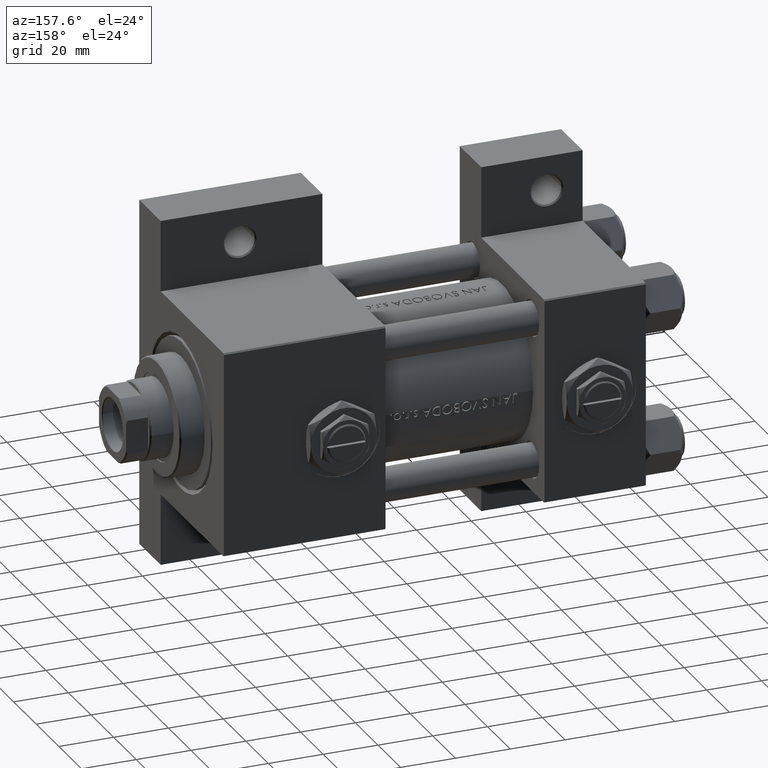
[diagram: clean part render]
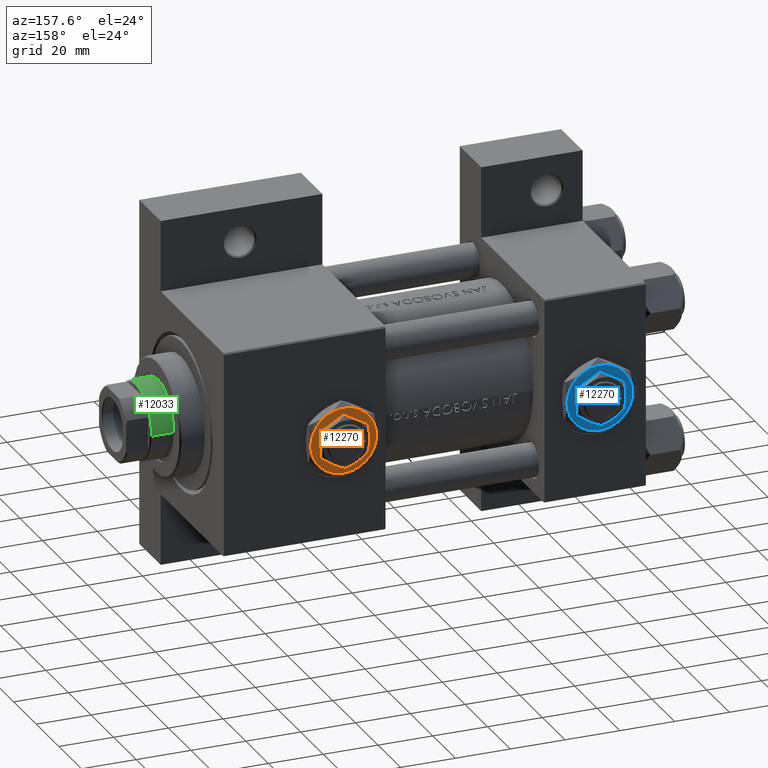
[diagram: same view with three faces highlighted in distinct colors, each labeled with its STEP entity id]
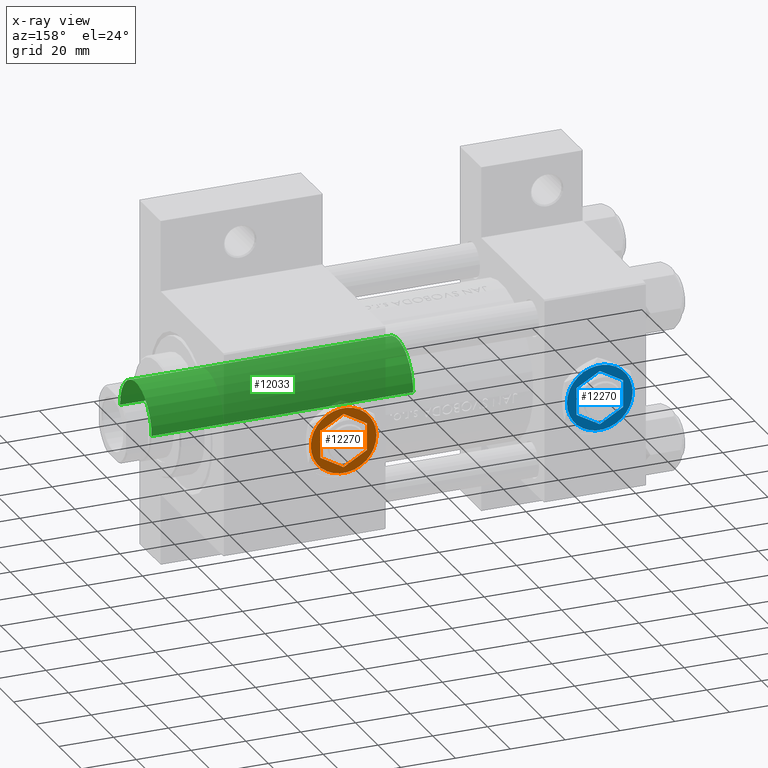
[diagram: x-ray of the same camera — body ghosted, the three highlighted faces saturated]
A machine part, auxiliary view with three faces highlighted in distinct colors.
The next image is the same camera in x-ray (body ghosted, the three faces saturated) — at least one of them is partly hidden behind the body in this view.
Their STEP definitions:

[orange] entity #12270 — the highlighted planar face has unit normal (0, 1, 0).
#495 = ORIENTED_EDGE ( 'NONE', *, *, #36572, .T. ) ;
#1752 = CARTESIAN_POINT ( 'NONE',  ( 11.99999999999999645, 3.004629197474318063E-15, 4.299999999999999822 ) ) ;
#2507 = DIRECTION ( 'NONE',  ( 0.000000000000000000, 0.000000000000000000, 1.000000000000000000 ) ) ;
#3000 = CIRCLE ( 'NONE', #45662, 12.00000000000000178 ) ;
#3204 = LINE ( 'NONE', #18585, #41126 ) ;
#3346 = EDGE_CURVE ( 'NONE', #38391, #48070, #39580, .T. ) ;
#3477 = CIRCLE ( 'NONE', #35939, 12.00000000000000178 ) ;
#3561 = LINE ( 'NONE', #10544, #24706 ) ;
#4240 = VERTEX_POINT ( 'NONE', #16581 ) ;
#4531 = CARTESIAN_POINT ( 'NONE',  ( 8.500000000000000000, -4.907477288111819824, 4.299999999999999822 ) ) ;
#4699 = ORIENTED_EDGE ( 'NONE', *, *, #5069, .F. ) ;
#4938 = VERTEX_POINT ( 'NONE', #1752 ) ;
#5069 = EDGE_CURVE ( 'NONE', #26936, #27834, #3204, .T. ) ;
#6199 = ORIENTED_EDGE ( 'NONE', *, *, #21320, .F. ) ;
#6394 = DIRECTION ( 'NONE',  ( 0.000000000000000000, 0.000000000000000000, 1.000000000000000000 ) ) ;
#7306 = EDGE_LOOP ( 'NONE', ( #27751, #25731, #6199, #30767, #4699, #8193 ) ) ;
#7328 = DIRECTION ( 'NONE',  ( 0.000000000000000000, 0.000000000000000000, 1.000000000000000000 ) ) ;
#7598 = CARTESIAN_POINT ( 'NONE',  ( 5.999999999999998224, -10.39230484541326760, 4.299999999999999822 ) ) ;
#8193 = ORIENTED_EDGE ( 'NONE', *, *, #31836, .F. ) ;
#8670 = VECTOR ( 'NONE', #19667, 1000.000000000000000 ) ;
#9870 = DIRECTION ( 'NONE',  ( 0.000000000000000000, 0.000000000000000000, 1.000000000000000000 ) ) ;
#10018 = VECTOR ( 'NONE', #21028, 1000.000000000000114 ) ;
#10544 = CARTESIAN_POINT ( 'NONE',  ( 0.000000000000000000, 9.814954576223637872, 4.299999999999999822 ) ) ;
#10646 = CIRCLE ( 'NONE', #15388, 12.00000000000000178 ) ;
#10811 = PLANE ( 'NONE',  #32242 ) ;
#12270 = ADVANCED_FACE ( 'NONE', ( #13804, #36819 ), #10811, .T. ) ;
#12516 = DIRECTION ( 'NONE',  ( 0.000000000000000000, -1.000000000000000000, 0.000000000000000000 ) ) ;
#13804 = FACE_OUTER_BOUND ( 'NONE', #19106, .T. ) ;
#13937 = DIRECTION ( 'NONE',  ( 1.000000000000000000, 0.000000000000000000, 0.000000000000000000 ) ) ;
#14046 = CARTESIAN_POINT ( 'NONE',  ( 8.500000000000000000, -4.907477288111819824, 4.299999999999999822 ) ) ;
#14323 = CARTESIAN_POINT ( 'NONE',  ( 0.000000000000000000, 0.000000000000000000, 4.299999999999999822 ) ) ;
#14330 = DIRECTION ( 'NONE',  ( 0.000000000000000000, 0.000000000000000000, 1.000000000000000000 ) ) ;
#14573 = CARTESIAN_POINT ( 'NONE',  ( -6.000000000000001776, 10.39230484541326405, 4.299999999999999822 ) ) ;
#15027 = EDGE_CURVE ( 'NONE', #48070, #4240, #3000, .T. ) ;
#15388 = AXIS2_PLACEMENT_3D ( 'NONE', #18062, #21285, #26229 ) ;
#16581 = CARTESIAN_POINT ( 'NONE',  ( -12.00000000000000178, 0.000000000000000000, 4.299999999999999822 ) ) ;
#17043 = VERTEX_POINT ( 'NONE', #14046 ) ;
#17914 = ORIENTED_EDGE ( 'NONE', *, *, #43512, .T. ) ;
#18062 = CARTESIAN_POINT ( 'NONE',  ( 0.000000000000000000, 0.000000000000000000, 4.299999999999999822 ) ) ;
#18134 = VERTEX_POINT ( 'NONE', #29269 ) ;
#18273 = DIRECTION ( 'NONE',  ( 1.000000000000000000, 0.000000000000000000, 0.000000000000000000 ) ) ;
#18585 = CARTESIAN_POINT ( 'NONE',  ( -8.500000000000000000, -4.907477288111819824, 4.299999999999999822 ) ) ;
#19106 = EDGE_LOOP ( 'NONE', ( #495, #17914, #28879, #39886, #39710, #44871 ) ) ;
#19667 = DIRECTION ( 'NONE',  ( -3.534857879381550604E-16, 1.000000000000000000, 0.000000000000000000 ) ) ;
#20784 = LINE ( 'NONE', #39856, #10018 ) ;
#21028 = DIRECTION ( 'NONE',  ( 0.8660254037844388186, 0.4999999999999997224, 0.000000000000000000 ) ) ;
#21285 = DIRECTION ( 'NONE',  ( 0.000000000000000000, 0.000000000000000000, 1.000000000000000000 ) ) ;
#21320 = EDGE_CURVE ( 'NONE', #17043, #21774, #38484, .T. ) ;
#21774 = VERTEX_POINT ( 'NONE', #38797 ) ;
#22482 = CARTESIAN_POINT ( 'NONE',  ( 0.000000000000000000, 0.000000000000000000, 4.299999999999999822 ) ) ;
#23821 = CARTESIAN_POINT ( 'NONE',  ( -6.000000000000000000, -10.39230484541326582, 4.299999999999999822 ) ) ;
#23991 = VECTOR ( 'NONE', #34222, 1000.000000000000114 ) ;
#24491 = EDGE_CURVE ( 'NONE', #37971, #25066, #34905, .T. ) ;
#24604 = DIRECTION ( 'NONE',  ( 0.000000000000000000, 0.000000000000000000, 1.000000000000000000 ) ) ;
#24706 = VECTOR ( 'NONE', #25645, 1000.000000000000227 ) ;
#25066 = VERTEX_POINT ( 'NONE', #7598 ) ;
#25645 = DIRECTION ( 'NONE',  ( -0.8660254037844385966, -0.5000000000000000000, 0.000000000000000000 ) ) ;
#25685 = CIRCLE ( 'NONE', #43091, 12.00000000000000178 ) ;
#25731 = ORIENTED_EDGE ( 'NONE', *, *, #34950, .F. ) ;
#25858 = CARTESIAN_POINT ( 'NONE',  ( -8.500000000000000000, 4.907477288111818048, 4.299999999999999822 ) ) ;
#26229 = DIRECTION ( 'NONE',  ( 1.000000000000000000, 0.000000000000000000, 0.000000000000000000 ) ) ;
#26936 = VERTEX_POINT ( 'NONE', #47702 ) ;
#27614 = CARTESIAN_POINT ( 'NONE',  ( -8.500000000000000000, 4.907477288111818048, 4.299999999999999822 ) ) ;
#27751 = ORIENTED_EDGE ( 'NONE', *, *, #30880, .F. ) ;
#27834 = VERTEX_POINT ( 'NONE', #45776 ) ;
#28879 = ORIENTED_EDGE ( 'NONE', *, *, #3346, .T. ) ;
#29269 = CARTESIAN_POINT ( 'NONE',  ( 0.000000000000000000, 9.814954576223637872, 4.299999999999999822 ) ) ;
#30261 = LINE ( 'NONE', #37923, #23991 ) ;
#30767 = ORIENTED_EDGE ( 'NONE', *, *, #48925, .F. ) ;
#30880 = EDGE_CURVE ( 'NONE', #18134, #44018, #3561, .T. ) ;
#31708 = AXIS2_PLACEMENT_3D ( 'NONE', #35023, #2507, #13937 ) ;
#31836 = EDGE_CURVE ( 'NONE', #44018, #26936, #46208, .T. ) ;
#32242 = AXIS2_PLACEMENT_3D ( 'NONE', #32874, #7328, #40549 ) ;
#32661 = DIRECTION ( 'NONE',  ( 1.000000000000000000, 0.000000000000000000, 0.000000000000000000 ) ) ;
#32874 = CARTESIAN_POINT ( 'NONE',  ( 0.000000000000000000, 0.000000000000000000, 4.299999999999999822 ) ) ;
#33213 = DIRECTION ( 'NONE',  ( 0.8660254037844385966, -0.5000000000000001110, 0.000000000000000000 ) ) ;
#33638 = DIRECTION ( 'NONE',  ( 1.000000000000000000, 0.000000000000000000, 0.000000000000000000 ) ) ;
#34222 = DIRECTION ( 'NONE',  ( -0.8660254037844387076, 0.4999999999999998890, 0.000000000000000000 ) ) ;
#34905 = CIRCLE ( 'NONE', #31708, 12.00000000000000178 ) ;
#34950 = EDGE_CURVE ( 'NONE', #21774, #18134, #30261, .T. ) ;
#35023 = CARTESIAN_POINT ( 'NONE',  ( 0.000000000000000000, 0.000000000000000000, 4.299999999999999822 ) ) ;
#35807 = VECTOR ( 'NONE', #12516, 1000.000000000000000 ) ;
#35939 = AXIS2_PLACEMENT_3D ( 'NONE', #47388, #24604, #46247 ) ;
#36572 = EDGE_CURVE ( 'NONE', #25066, #4938, #3477, .T. ) ;
#36819 = FACE_BOUND ( 'NONE', #7306, .T. ) ;
#37199 = EDGE_CURVE ( 'NONE', #4240, #37971, #25685, .T. ) ;
#37923 = CARTESIAN_POINT ( 'NONE',  ( 8.499999999999996447, 4.907477288111821601, 4.299999999999999822 ) ) ;
#37971 = VERTEX_POINT ( 'NONE', #23821 ) ;
#38391 = VERTEX_POINT ( 'NONE', #48017 ) ;
#38484 = LINE ( 'NONE', #4531, #8670 ) ;
#38797 = CARTESIAN_POINT ( 'NONE',  ( 8.499999999999996447, 4.907477288111821601, 4.299999999999999822 ) ) ;
#39580 = CIRCLE ( 'NONE', #41162, 12.00000000000000178 ) ;
#39710 = ORIENTED_EDGE ( 'NONE', *, *, #37199, .T. ) ;
#39856 = CARTESIAN_POINT ( 'NONE',  ( -2.644623992720612091E-15, -9.814954576223637872, 4.299999999999999822 ) ) ;
#39886 = ORIENTED_EDGE ( 'NONE', *, *, #15027, .T. ) ;
#40549 = DIRECTION ( 'NONE',  ( 1.000000000000000000, 0.000000000000000000, -0.000000000000000000 ) ) ;
#41126 = VECTOR ( 'NONE', #33213, 1000.000000000000114 ) ;
#41162 = AXIS2_PLACEMENT_3D ( 'NONE', #48018, #6394, #33638 ) ;
#43091 = AXIS2_PLACEMENT_3D ( 'NONE', #14323, #9870, #32661 ) ;
#43512 = EDGE_CURVE ( 'NONE', #4938, #38391, #10646, .T. ) ;
#44018 = VERTEX_POINT ( 'NONE', #25858 ) ;
#44871 = ORIENTED_EDGE ( 'NONE', *, *, #24491, .T. ) ;
#45662 = AXIS2_PLACEMENT_3D ( 'NONE', #22482, #14330, #18273 ) ;
#45776 = CARTESIAN_POINT ( 'NONE',  ( -2.644623992720612091E-15, -9.814954576223637872, 4.299999999999999822 ) ) ;
#46208 = LINE ( 'NONE', #27614, #35807 ) ;
#46247 = DIRECTION ( 'NONE',  ( 1.000000000000000000, 0.000000000000000000, 0.000000000000000000 ) ) ;
#47388 = CARTESIAN_POINT ( 'NONE',  ( 0.000000000000000000, 0.000000000000000000, 4.299999999999999822 ) ) ;
#47702 = CARTESIAN_POINT ( 'NONE',  ( -8.500000000000000000, -4.907477288111819824, 4.299999999999999822 ) ) ;
#48017 = CARTESIAN_POINT ( 'NONE',  ( 6.000000000000000888, 10.39230484541326582, 4.299999999999999822 ) ) ;
#48018 = CARTESIAN_POINT ( 'NONE',  ( 0.000000000000000000, 0.000000000000000000, 4.299999999999999822 ) ) ;
#48070 = VERTEX_POINT ( 'NONE', #14573 ) ;
#48925 = EDGE_CURVE ( 'NONE', #27834, #17043, #20784, .T. ) ;

[blue] entity #12270 — the highlighted planar face has unit normal (0, 1, 0).
#495 = ORIENTED_EDGE ( 'NONE', *, *, #36572, .T. ) ;
#1752 = CARTESIAN_POINT ( 'NONE',  ( 11.99999999999999645, 3.004629197474318063E-15, 4.299999999999999822 ) ) ;
#2507 = DIRECTION ( 'NONE',  ( 0.000000000000000000, 0.000000000000000000, 1.000000000000000000 ) ) ;
#3000 = CIRCLE ( 'NONE', #45662, 12.00000000000000178 ) ;
#3204 = LINE ( 'NONE', #18585, #41126 ) ;
#3346 = EDGE_CURVE ( 'NONE', #38391, #48070, #39580, .T. ) ;
#3477 = CIRCLE ( 'NONE', #35939, 12.00000000000000178 ) ;
#3561 = LINE ( 'NONE', #10544, #24706 ) ;
#4240 = VERTEX_POINT ( 'NONE', #16581 ) ;
#4531 = CARTESIAN_POINT ( 'NONE',  ( 8.500000000000000000, -4.907477288111819824, 4.299999999999999822 ) ) ;
#4699 = ORIENTED_EDGE ( 'NONE', *, *, #5069, .F. ) ;
#4938 = VERTEX_POINT ( 'NONE', #1752 ) ;
#5069 = EDGE_CURVE ( 'NONE', #26936, #27834, #3204, .T. ) ;
#6199 = ORIENTED_EDGE ( 'NONE', *, *, #21320, .F. ) ;
#6394 = DIRECTION ( 'NONE',  ( 0.000000000000000000, 0.000000000000000000, 1.000000000000000000 ) ) ;
#7306 = EDGE_LOOP ( 'NONE', ( #27751, #25731, #6199, #30767, #4699, #8193 ) ) ;
#7328 = DIRECTION ( 'NONE',  ( 0.000000000000000000, 0.000000000000000000, 1.000000000000000000 ) ) ;
#7598 = CARTESIAN_POINT ( 'NONE',  ( 5.999999999999998224, -10.39230484541326760, 4.299999999999999822 ) ) ;
#8193 = ORIENTED_EDGE ( 'NONE', *, *, #31836, .F. ) ;
#8670 = VECTOR ( 'NONE', #19667, 1000.000000000000000 ) ;
#9870 = DIRECTION ( 'NONE',  ( 0.000000000000000000, 0.000000000000000000, 1.000000000000000000 ) ) ;
#10018 = VECTOR ( 'NONE', #21028, 1000.000000000000114 ) ;
#10544 = CARTESIAN_POINT ( 'NONE',  ( 0.000000000000000000, 9.814954576223637872, 4.299999999999999822 ) ) ;
#10646 = CIRCLE ( 'NONE', #15388, 12.00000000000000178 ) ;
#10811 = PLANE ( 'NONE',  #32242 ) ;
#12270 = ADVANCED_FACE ( 'NONE', ( #13804, #36819 ), #10811, .T. ) ;
#12516 = DIRECTION ( 'NONE',  ( 0.000000000000000000, -1.000000000000000000, 0.000000000000000000 ) ) ;
#13804 = FACE_OUTER_BOUND ( 'NONE', #19106, .T. ) ;
#13937 = DIRECTION ( 'NONE',  ( 1.000000000000000000, 0.000000000000000000, 0.000000000000000000 ) ) ;
#14046 = CARTESIAN_POINT ( 'NONE',  ( 8.500000000000000000, -4.907477288111819824, 4.299999999999999822 ) ) ;
#14323 = CARTESIAN_POINT ( 'NONE',  ( 0.000000000000000000, 0.000000000000000000, 4.299999999999999822 ) ) ;
#14330 = DIRECTION ( 'NONE',  ( 0.000000000000000000, 0.000000000000000000, 1.000000000000000000 ) ) ;
#14573 = CARTESIAN_POINT ( 'NONE',  ( -6.000000000000001776, 10.39230484541326405, 4.299999999999999822 ) ) ;
#15027 = EDGE_CURVE ( 'NONE', #48070, #4240, #3000, .T. ) ;
#15388 = AXIS2_PLACEMENT_3D ( 'NONE', #18062, #21285, #26229 ) ;
#16581 = CARTESIAN_POINT ( 'NONE',  ( -12.00000000000000178, 0.000000000000000000, 4.299999999999999822 ) ) ;
#17043 = VERTEX_POINT ( 'NONE', #14046 ) ;
#17914 = ORIENTED_EDGE ( 'NONE', *, *, #43512, .T. ) ;
#18062 = CARTESIAN_POINT ( 'NONE',  ( 0.000000000000000000, 0.000000000000000000, 4.299999999999999822 ) ) ;
#18134 = VERTEX_POINT ( 'NONE', #29269 ) ;
#18273 = DIRECTION ( 'NONE',  ( 1.000000000000000000, 0.000000000000000000, 0.000000000000000000 ) ) ;
#18585 = CARTESIAN_POINT ( 'NONE',  ( -8.500000000000000000, -4.907477288111819824, 4.299999999999999822 ) ) ;
#19106 = EDGE_LOOP ( 'NONE', ( #495, #17914, #28879, #39886, #39710, #44871 ) ) ;
#19667 = DIRECTION ( 'NONE',  ( -3.534857879381550604E-16, 1.000000000000000000, 0.000000000000000000 ) ) ;
#20784 = LINE ( 'NONE', #39856, #10018 ) ;
#21028 = DIRECTION ( 'NONE',  ( 0.8660254037844388186, 0.4999999999999997224, 0.000000000000000000 ) ) ;
#21285 = DIRECTION ( 'NONE',  ( 0.000000000000000000, 0.000000000000000000, 1.000000000000000000 ) ) ;
#21320 = EDGE_CURVE ( 'NONE', #17043, #21774, #38484, .T. ) ;
#21774 = VERTEX_POINT ( 'NONE', #38797 ) ;
#22482 = CARTESIAN_POINT ( 'NONE',  ( 0.000000000000000000, 0.000000000000000000, 4.299999999999999822 ) ) ;
#23821 = CARTESIAN_POINT ( 'NONE',  ( -6.000000000000000000, -10.39230484541326582, 4.299999999999999822 ) ) ;
#23991 = VECTOR ( 'NONE', #34222, 1000.000000000000114 ) ;
#24491 = EDGE_CURVE ( 'NONE', #37971, #25066, #34905, .T. ) ;
#24604 = DIRECTION ( 'NONE',  ( 0.000000000000000000, 0.000000000000000000, 1.000000000000000000 ) ) ;
#24706 = VECTOR ( 'NONE', #25645, 1000.000000000000227 ) ;
#25066 = VERTEX_POINT ( 'NONE', #7598 ) ;
#25645 = DIRECTION ( 'NONE',  ( -0.8660254037844385966, -0.5000000000000000000, 0.000000000000000000 ) ) ;
#25685 = CIRCLE ( 'NONE', #43091, 12.00000000000000178 ) ;
#25731 = ORIENTED_EDGE ( 'NONE', *, *, #34950, .F. ) ;
#25858 = CARTESIAN_POINT ( 'NONE',  ( -8.500000000000000000, 4.907477288111818048, 4.299999999999999822 ) ) ;
#26229 = DIRECTION ( 'NONE',  ( 1.000000000000000000, 0.000000000000000000, 0.000000000000000000 ) ) ;
#26936 = VERTEX_POINT ( 'NONE', #47702 ) ;
#27614 = CARTESIAN_POINT ( 'NONE',  ( -8.500000000000000000, 4.907477288111818048, 4.299999999999999822 ) ) ;
#27751 = ORIENTED_EDGE ( 'NONE', *, *, #30880, .F. ) ;
#27834 = VERTEX_POINT ( 'NONE', #45776 ) ;
#28879 = ORIENTED_EDGE ( 'NONE', *, *, #3346, .T. ) ;
#29269 = CARTESIAN_POINT ( 'NONE',  ( 0.000000000000000000, 9.814954576223637872, 4.299999999999999822 ) ) ;
#30261 = LINE ( 'NONE', #37923, #23991 ) ;
#30767 = ORIENTED_EDGE ( 'NONE', *, *, #48925, .F. ) ;
#30880 = EDGE_CURVE ( 'NONE', #18134, #44018, #3561, .T. ) ;
#31708 = AXIS2_PLACEMENT_3D ( 'NONE', #35023, #2507, #13937 ) ;
#31836 = EDGE_CURVE ( 'NONE', #44018, #26936, #46208, .T. ) ;
#32242 = AXIS2_PLACEMENT_3D ( 'NONE', #32874, #7328, #40549 ) ;
#32661 = DIRECTION ( 'NONE',  ( 1.000000000000000000, 0.000000000000000000, 0.000000000000000000 ) ) ;
#32874 = CARTESIAN_POINT ( 'NONE',  ( 0.000000000000000000, 0.000000000000000000, 4.299999999999999822 ) ) ;
#33213 = DIRECTION ( 'NONE',  ( 0.8660254037844385966, -0.5000000000000001110, 0.000000000000000000 ) ) ;
#33638 = DIRECTION ( 'NONE',  ( 1.000000000000000000, 0.000000000000000000, 0.000000000000000000 ) ) ;
#34222 = DIRECTION ( 'NONE',  ( -0.8660254037844387076, 0.4999999999999998890, 0.000000000000000000 ) ) ;
#34905 = CIRCLE ( 'NONE', #31708, 12.00000000000000178 ) ;
#34950 = EDGE_CURVE ( 'NONE', #21774, #18134, #30261, .T. ) ;
#35023 = CARTESIAN_POINT ( 'NONE',  ( 0.000000000000000000, 0.000000000000000000, 4.299999999999999822 ) ) ;
#35807 = VECTOR ( 'NONE', #12516, 1000.000000000000000 ) ;
#35939 = AXIS2_PLACEMENT_3D ( 'NONE', #47388, #24604, #46247 ) ;
#36572 = EDGE_CURVE ( 'NONE', #25066, #4938, #3477, .T. ) ;
#36819 = FACE_BOUND ( 'NONE', #7306, .T. ) ;
#37199 = EDGE_CURVE ( 'NONE', #4240, #37971, #25685, .T. ) ;
#37923 = CARTESIAN_POINT ( 'NONE',  ( 8.499999999999996447, 4.907477288111821601, 4.299999999999999822 ) ) ;
#37971 = VERTEX_POINT ( 'NONE', #23821 ) ;
#38391 = VERTEX_POINT ( 'NONE', #48017 ) ;
#38484 = LINE ( 'NONE', #4531, #8670 ) ;
#38797 = CARTESIAN_POINT ( 'NONE',  ( 8.499999999999996447, 4.907477288111821601, 4.299999999999999822 ) ) ;
#39580 = CIRCLE ( 'NONE', #41162, 12.00000000000000178 ) ;
#39710 = ORIENTED_EDGE ( 'NONE', *, *, #37199, .T. ) ;
#39856 = CARTESIAN_POINT ( 'NONE',  ( -2.644623992720612091E-15, -9.814954576223637872, 4.299999999999999822 ) ) ;
#39886 = ORIENTED_EDGE ( 'NONE', *, *, #15027, .T. ) ;
#40549 = DIRECTION ( 'NONE',  ( 1.000000000000000000, 0.000000000000000000, -0.000000000000000000 ) ) ;
#41126 = VECTOR ( 'NONE', #33213, 1000.000000000000114 ) ;
#41162 = AXIS2_PLACEMENT_3D ( 'NONE', #48018, #6394, #33638 ) ;
#43091 = AXIS2_PLACEMENT_3D ( 'NONE', #14323, #9870, #32661 ) ;
#43512 = EDGE_CURVE ( 'NONE', #4938, #38391, #10646, .T. ) ;
#44018 = VERTEX_POINT ( 'NONE', #25858 ) ;
#44871 = ORIENTED_EDGE ( 'NONE', *, *, #24491, .T. ) ;
#45662 = AXIS2_PLACEMENT_3D ( 'NONE', #22482, #14330, #18273 ) ;
#45776 = CARTESIAN_POINT ( 'NONE',  ( -2.644623992720612091E-15, -9.814954576223637872, 4.299999999999999822 ) ) ;
#46208 = LINE ( 'NONE', #27614, #35807 ) ;
#46247 = DIRECTION ( 'NONE',  ( 1.000000000000000000, 0.000000000000000000, 0.000000000000000000 ) ) ;
#47388 = CARTESIAN_POINT ( 'NONE',  ( 0.000000000000000000, 0.000000000000000000, 4.299999999999999822 ) ) ;
#47702 = CARTESIAN_POINT ( 'NONE',  ( -8.500000000000000000, -4.907477288111819824, 4.299999999999999822 ) ) ;
#48017 = CARTESIAN_POINT ( 'NONE',  ( 6.000000000000000888, 10.39230484541326582, 4.299999999999999822 ) ) ;
#48018 = CARTESIAN_POINT ( 'NONE',  ( 0.000000000000000000, 0.000000000000000000, 4.299999999999999822 ) ) ;
#48070 = VERTEX_POINT ( 'NONE', #14573 ) ;
#48925 = EDGE_CURVE ( 'NONE', #27834, #17043, #20784, .T. ) ;

[green] entity #12033 — the highlighted cylindrical surface (partial cylindrical patch) has radius 14 mm, axis along (-1, 0, 0).
#702 = DIRECTION ( 'NONE',  ( 0.000000000000000000, 0.000000000000000000, 1.000000000000000000 ) ) ;
#1728 = AXIS2_PLACEMENT_3D ( 'NONE', #13534, #20956, #17482 ) ;
#5070 = LINE ( 'NONE', #9049, #23846 ) ;
#6316 = AXIS2_PLACEMENT_3D ( 'NONE', #38136, #702, #20043 ) ;
#7299 = CIRCLE ( 'NONE', #1728, 14.00000000000000178 ) ;
#8792 = EDGE_CURVE ( 'NONE', #30517, #14436, #5070, .T. ) ;
#9049 = CARTESIAN_POINT ( 'NONE',  ( -14.00000000000000178, 0.000000000000000000, 134.0000000000000000 ) ) ;
#11492 = DIRECTION ( 'NONE',  ( -0.000000000000000000, -0.000000000000000000, -1.000000000000000000 ) ) ;
#12033 = ADVANCED_FACE ( 'NONE', ( #33425 ), #30446, .T. ) ;
#13534 = CARTESIAN_POINT ( 'NONE',  ( 0.000000000000000000, 0.000000000000000000, 133.5000000000000284 ) ) ;
#14436 = VERTEX_POINT ( 'NONE', #38988 ) ;
#14834 = DIRECTION ( 'NONE',  ( -1.000000000000000000, 0.000000000000000000, 0.000000000000000000 ) ) ;
#15012 = CIRCLE ( 'NONE', #6316, 14.00000000000000178 ) ;
#16413 = AXIS2_PLACEMENT_3D ( 'NONE', #45053, #41586, #14834 ) ;
#17482 = DIRECTION ( 'NONE',  ( 1.000000000000000000, 0.000000000000000000, 0.000000000000000000 ) ) ;
#18788 = EDGE_CURVE ( 'NONE', #41803, #45897, #23130, .T. ) ;
#20043 = DIRECTION ( 'NONE',  ( 1.000000000000000000, 0.000000000000000000, 0.000000000000000000 ) ) ;
#20956 = DIRECTION ( 'NONE',  ( 0.000000000000000000, 0.000000000000000000, -1.000000000000000000 ) ) ;
#22623 = EDGE_CURVE ( 'NONE', #14436, #45897, #15012, .T. ) ;
#23130 = LINE ( 'NONE', #30818, #44973 ) ;
#23846 = VECTOR ( 'NONE', #24155, 1000.000000000000000 ) ;
#24155 = DIRECTION ( 'NONE',  ( -0.000000000000000000, -0.000000000000000000, -1.000000000000000000 ) ) ;
#26928 = CARTESIAN_POINT ( 'NONE',  ( 14.00000000000000178, 1.714505518806294835E-15, 38.00000000000000000 ) ) ;
#30345 = ORIENTED_EDGE ( 'NONE', *, *, #18788, .F. ) ;
#30446 = CYLINDRICAL_SURFACE ( 'NONE', #16413, 14.00000000000000178 ) ;
#30517 = VERTEX_POINT ( 'NONE', #41307 ) ;
#30702 = EDGE_CURVE ( 'NONE', #41803, #30517, #7299, .T. ) ;
#30818 = CARTESIAN_POINT ( 'NONE',  ( 14.00000000000000178, 1.714505518806294835E-15, 134.0000000000000000 ) ) ;
#33425 = FACE_OUTER_BOUND ( 'NONE', #35235, .T. ) ;
#35235 = EDGE_LOOP ( 'NONE', ( #30345, #38652, #40712, #47844 ) ) ;
#38136 = CARTESIAN_POINT ( 'NONE',  ( 0.000000000000000000, 0.000000000000000000, 38.00000000000000000 ) ) ;
#38652 = ORIENTED_EDGE ( 'NONE', *, *, #30702, .T. ) ;
#38988 = CARTESIAN_POINT ( 'NONE',  ( -14.00000000000000178, 0.000000000000000000, 38.00000000000000000 ) ) ;
#40094 = CARTESIAN_POINT ( 'NONE',  ( 14.00000000000000178, 1.714505518806294835E-15, 133.5000000000000284 ) ) ;
#40712 = ORIENTED_EDGE ( 'NONE', *, *, #8792, .T. ) ;
#41307 = CARTESIAN_POINT ( 'NONE',  ( -14.00000000000000178, 0.000000000000000000, 133.5000000000000284 ) ) ;
#41586 = DIRECTION ( 'NONE',  ( -0.000000000000000000, -0.000000000000000000, -1.000000000000000000 ) ) ;
#41803 = VERTEX_POINT ( 'NONE', #40094 ) ;
#44973 = VECTOR ( 'NONE', #11492, 1000.000000000000000 ) ;
#45053 = CARTESIAN_POINT ( 'NONE',  ( 0.000000000000000000, 0.000000000000000000, 134.0000000000000000 ) ) ;
#45897 = VERTEX_POINT ( 'NONE', #26928 ) ;
#47844 = ORIENTED_EDGE ( 'NONE', *, *, #22623, .T. ) ;